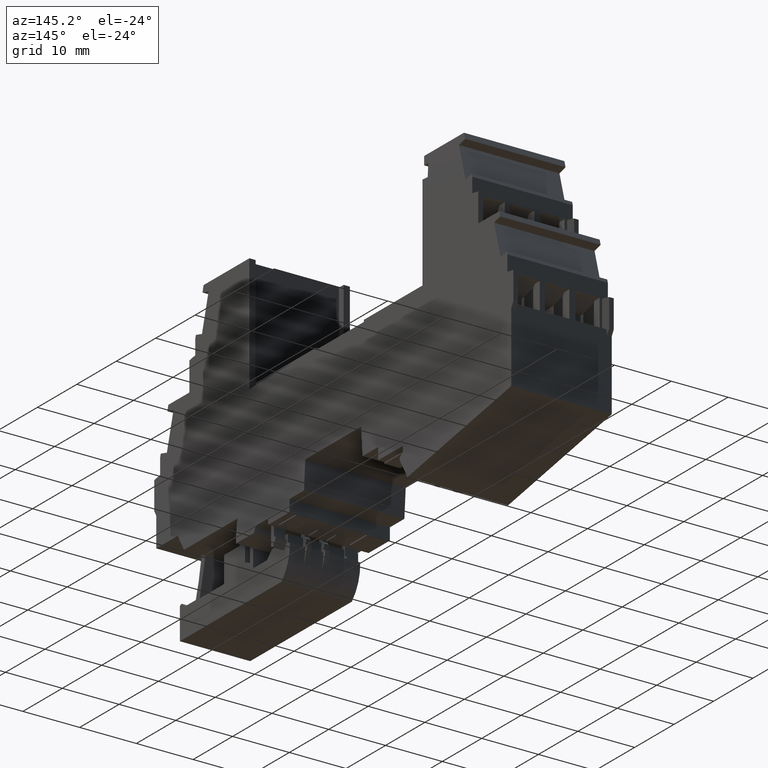
[diagram: clean part render]
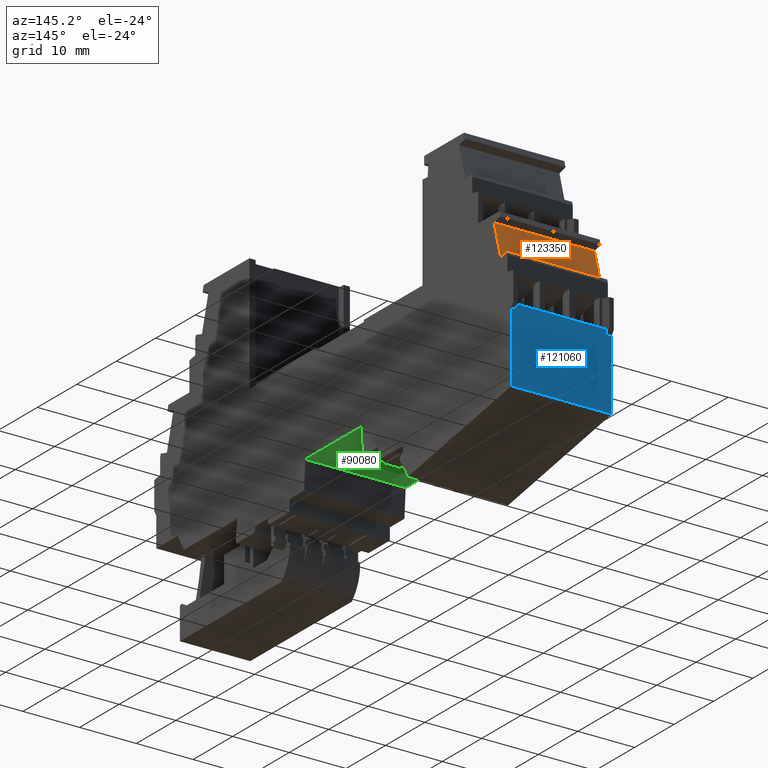
[diagram: same view with three faces highlighted in distinct colors, each labeled with its STEP entity id]
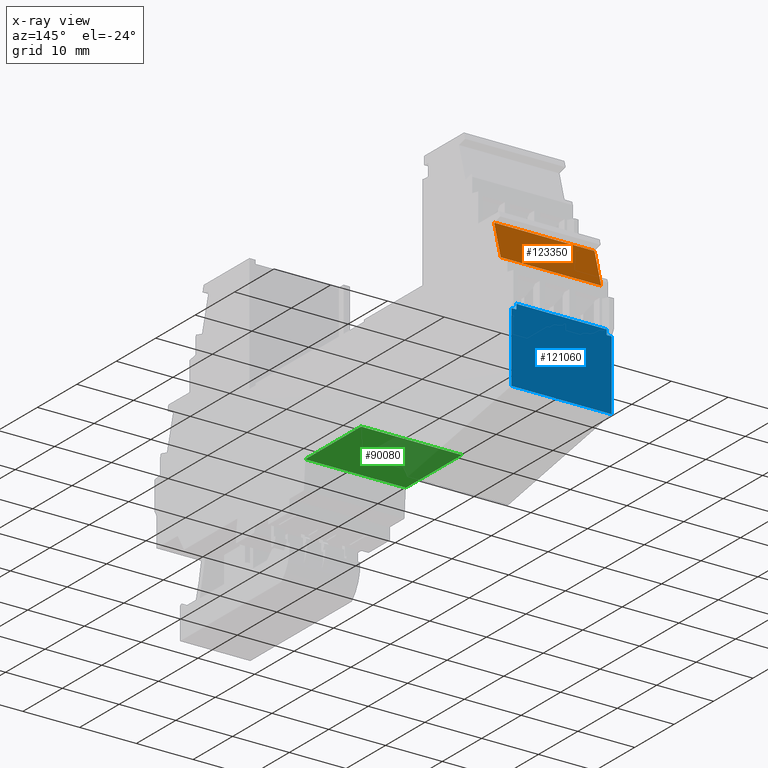
[diagram: x-ray of the same camera — body ghosted, the three highlighted faces saturated]
A machine part, auxiliary view with three faces highlighted in distinct colors.
The next image is the same camera in x-ray (body ghosted, the three faces saturated) — at least one of them is partly hidden behind the body in this view.
Their STEP definitions:

[orange] entity #123350 — the highlighted planar face has unit normal (0, -0.9646, -0.2639).
#4680=CARTESIAN_POINT('',(181.472249682046,25.8289071329206,
-1.11334144334212));
#4690=VERTEX_POINT('',#4680);
#4720=CARTESIAN_POINT('',(182.754325127093,21.1424286096103,
-1.11334144313539));
#4730=DIRECTION('',(0.263873049965295,-0.964557418457819,
4.25495846299332E-11));
#4740=VECTOR('',#4730,1.);
#4750=LINE('',#4720,#4740);
#4760=CARTESIAN_POINT('',(179.803252641016,31.9297328046665,
-1.11334144361125));
#4770=VERTEX_POINT('',#4760);
#4780=EDGE_CURVE('',#4770,#4690,#4750,.T.);
#9450=CARTESIAN_POINT('',(179.803252641018,31.9297328054473,
16.586658552846));
#9460=VERTEX_POINT('',#9450);
#9490=CARTESIAN_POINT('',(182.754325127098,21.1424286103838,
16.5866585532997));
#9500=DIRECTION('',(0.263873049965258,-0.96455741845783,
4.24800014018637E-11));
#9510=VECTOR('',#9500,1.);
#9520=LINE('',#9490,#9510);
#9530=CARTESIAN_POINT('',(181.472249682049,25.8289071337014,
16.5866585531156));
#9540=VERTEX_POINT('',#9530);
#9550=EDGE_CURVE('',#9460,#9540,#9520,.T.);
#122960=CARTESIAN_POINT('',(179.803252641018,31.9297328054471,
16.5866585586461));
#122970=DIRECTION('',(1.31820480468454E-13,4.41130550527766E-11,1.));
#122980=VECTOR('',#122970,1.);
#122990=LINE('',#122960,#122980);
#123000=EDGE_CURVE('',#4770,#9460,#122990,.T.);
#123190=CARTESIAN_POINT('',(181.340313157064,26.3111858421498,
-1.11334144390519));
#123200=DIRECTION('',(-0.96455741845783,-0.263873049965258,
1.1767394802402E-11));
#123210=DIRECTION('',(0.263873049965258,-0.96455741845783,
4.25147906297652E-11));
#123220=AXIS2_PLACEMENT_3D('',#123190,#123200,#123210);
#123230=PLANE('',#123220);
#123240=ORIENTED_EDGE('',*,*,#4780,.F.);
#123250=CARTESIAN_POINT('',(181.472249682049,25.8289071337014,
16.5866585589859));
#123260=DIRECTION('',(1.31820480468454E-13,4.41130550527766E-11,1.));
#123270=VECTOR('',#123260,1.);
#123280=LINE('',#123250,#123270);
#123290=EDGE_CURVE('',#4690,#9540,#123280,.T.);
#123300=ORIENTED_EDGE('',*,*,#123290,.F.);
#123310=ORIENTED_EDGE('',*,*,#9550,.T.);
#123320=ORIENTED_EDGE('',*,*,#123000,.T.);
#123330=EDGE_LOOP('',(#123320,#123310,#123300,#123240));
#123340=FACE_OUTER_BOUND('',#123330,.T.);
#123350=ADVANCED_FACE('',(#123340),#123230,.F.);

[blue] entity #121060 — the highlighted planar face has unit normal (-0, 1, 0).
#4120=CARTESIAN_POINT('',(184.15302021237,4.48200537766807,
-1.11334144240044));
#4130=VERTEX_POINT('',#4120);
#4160=CARTESIAN_POINT('',(184.15302021249,21.1424286096103,
-1.11334144313539));
#4170=DIRECTION('',(-1.20220234929685E-15,1.,-4.41130550527766E-11));
#4180=VECTOR('',#4170,1.);
#4190=LINE('',#4160,#4180);
#4200=CARTESIAN_POINT('',(184.153020565261,16.8194123656006,
-1.11334144294469));
#4210=VERTEX_POINT('',#4200);
#4220=EDGE_CURVE('',#4130,#4210,#4190,.T.);
#10010=CARTESIAN_POINT('',(184.153020565264,16.8194123663814,
16.5866585535137));
#10020=VERTEX_POINT('',#10010);
#10050=CARTESIAN_POINT('',(184.153020212364,21.1424286103838,
16.586658553323));
#10060=DIRECTION('',(1.56403759803267E-19,-1.,4.41130550527766E-11));
#10070=VECTOR('',#10060,1.);
#10080=LINE('',#10050,#10070);
#10090=CARTESIAN_POINT('',(184.153020212364,4.48200537829809,
16.586658554058));
#10100=VERTEX_POINT('',#10090);
#10110=EDGE_CURVE('',#10020,#10100,#10080,.T.);
#114780=CARTESIAN_POINT('',(184.153020682893,17.7109036491316,
-0.243639142450979));
#114790=VERTEX_POINT('',#114780);
#114820=CARTESIAN_POINT('',(184.153020682897,17.7109036498739,
16.5866585594582));
#114830=DIRECTION('',(2.63640960925619E-13,4.41038485075519E-11,1.));
#114840=VECTOR('',#114830,1.);
#114850=LINE('',#114820,#114840);
#114860=CARTESIAN_POINT('',(184.153020682897,17.7109036498356,
15.7169562529178));
#114870=VERTEX_POINT('',#114860);
#114880=EDGE_CURVE('',#114790,#114870,#114850,.T.);
#120170=CARTESIAN_POINT('',(184.153020682893,16.8194125693825,
-0.243639142412375));
#120180=VERTEX_POINT('',#120170);
#120210=CARTESIAN_POINT('',(184.153020682893,21.1424286096483,
-0.243639142599543));
#120220=DIRECTION('',(1.56403544493521E-19,-1.,4.32961759002859E-11));
#120230=VECTOR('',#120220,1.);
#120240=LINE('',#120210,#120230);
#120250=EDGE_CURVE('',#114790,#120180,#120240,.T.);
#120500=CARTESIAN_POINT('',(184.153020682897,16.8194125701146,
16.5866585594971));
#120510=DIRECTION('',(2.63640960925619E-13,4.35013393018142E-11,1.));
#120520=VECTOR('',#120510,1.);
#120530=LINE('',#120500,#120520);
#120540=EDGE_CURVE('',#4210,#120180,#120530,.T.);
#120740=CARTESIAN_POINT('',(184.153020212364,4.97487195631985,
16.5866585570475));
#120750=DIRECTION('',(1.,1.56409574832622E-19,1.31820480445855E-13));
#120760=DIRECTION('',(1.56403759828511E-19,-1.,4.41130550527766E-11));
#120770=AXIS2_PLACEMENT_3D('',#120740,#120750,#120760);
#120780=PLANE('',#120770);
#120790=ORIENTED_EDGE('',*,*,#10110,.T.);
#120800=CARTESIAN_POINT('',(184.153020682896,16.8194125693338,
-1.11334144895183));
#120810=DIRECTION('',(-1.13026475887129E-23,-4.4724770803739E-11,-1.));
#120820=VECTOR('',#120810,1.);
#120830=LINE('',#120800,#120820);
#120840=CARTESIAN_POINT('',(184.153020682897,16.8194125700892,
15.7169562529579));
#120850=VERTEX_POINT('',#120840);
#120860=EDGE_CURVE('',#10020,#120850,#120830,.T.);
#120870=ORIENTED_EDGE('',*,*,#120860,.F.);
#120880=CARTESIAN_POINT('',(184.153020682897,21.1424286103458,
15.7169562527637));
#120890=DIRECTION('',(1.56403975265368E-19,-1.,4.49299342052673E-11));
#120900=VECTOR('',#120890,1.);
#120910=LINE('',#120880,#120900);
#120920=EDGE_CURVE('',#114870,#120850,#120910,.T.);
#120930=ORIENTED_EDGE('',*,*,#120920,.T.);
#120940=ORIENTED_EDGE('',*,*,#114880,.T.);
#120950=ORIENTED_EDGE('',*,*,#120250,.F.);
#120960=ORIENTED_EDGE('',*,*,#120540,.T.);
#120970=ORIENTED_EDGE('',*,*,#4220,.T.);
#120980=CARTESIAN_POINT('',(184.153020212485,4.48200537832045,
16.5866585560917));
#120990=DIRECTION('',(2.63640960903007E-13,-3.56120809082431E-11,-1.));
#121000=VECTOR('',#120990,1.);
#121010=LINE('',#120980,#121000);
#121020=EDGE_CURVE('',#10100,#4130,#121010,.T.);
#121030=ORIENTED_EDGE('',*,*,#121020,.T.);
#121040=EDGE_LOOP('',(#121030,#120970,#120960,#120950,#120940,#120930,
#120870,#120790));
#121050=FACE_OUTER_BOUND('',#121040,.T.);
#121060=ADVANCED_FACE('',(#121050),#120780,.T.);

[green] entity #90080 — the highlighted planar face has unit normal (0, 0, -1).
#3320=CARTESIAN_POINT('',(131.923225181691,11.9499999995831,
-1.11334144272988));
#3330=VERTEX_POINT('',#3320);
#3360=CARTESIAN_POINT('',(192.854165374852,11.9499999995832,
-1.11334144272988));
#3370=DIRECTION('',(1.,3.21694825271889E-17,-1.12961852401773E-23));
#3380=VECTOR('',#3370,1.);
#3390=LINE('',#3360,#3380);
#3400=CARTESIAN_POINT('',(146.082082747328,11.9499999995831,
-1.11334144272988));
#3410=VERTEX_POINT('',#3400);
#3420=EDGE_CURVE('',#3330,#3410,#3390,.T.);
#10810=CARTESIAN_POINT('',(146.082082747328,11.950000000364,
16.5866585537185));
#10820=VERTEX_POINT('',#10810);
#10850=CARTESIAN_POINT('',(192.854165375628,11.950000000364,
16.5866585537308));
#10860=DIRECTION('',(1.,3.21694941564861E-17,2.63640960903014E-13));
#10870=VECTOR('',#10860,1.);
#10880=LINE('',#10850,#10870);
#10890=CARTESIAN_POINT('',(131.923225181691,11.9500000003639,
16.5866585537148));
#10900=VERTEX_POINT('',#10890);
#10910=EDGE_CURVE('',#10900,#10820,#10880,.T.);
#89870=CARTESIAN_POINT('',(146.082082747328,11.9499999995831,
-1.11334144272988));
#89880=DIRECTION('',(3.21694825262236E-17,-1.,4.41130550527766E-11));
#89890=DIRECTION('',(1.,3.21694825262236E-17,-1.13026475887129E-23));
#89900=AXIS2_PLACEMENT_3D('',#89870,#89880,#89890);
#89910=PLANE('',#89900);
#89920=CARTESIAN_POINT('',(131.923225181691,11.9500000009027,
28.8000000021846));
#89930=DIRECTION('',(-1.13026475887129E-23,-4.41130550527766E-11,-1.));
#89940=VECTOR('',#89930,1.);
#89950=LINE('',#89920,#89940);
#89960=EDGE_CURVE('',#10900,#3330,#89950,.T.);
#89970=ORIENTED_EDGE('',*,*,#89960,.T.);
#89980=ORIENTED_EDGE('',*,*,#10910,.F.);
#89990=CARTESIAN_POINT('',(146.082082747328,11.9500000009027,
28.800000001564));
#90000=DIRECTION('',(-1.13026475887129E-23,-4.41130550527766E-11,-1.));
#90010=VECTOR('',#90000,1.);
#90020=LINE('',#89990,#90010);
#90030=EDGE_CURVE('',#10820,#3410,#90020,.T.);
#90040=ORIENTED_EDGE('',*,*,#90030,.F.);
#90050=ORIENTED_EDGE('',*,*,#3420,.T.);
#90060=EDGE_LOOP('',(#90050,#90040,#89980,#89970));
#90070=FACE_OUTER_BOUND('',#90060,.T.);
#90080=ADVANCED_FACE('',(#90070),#89910,.T.);